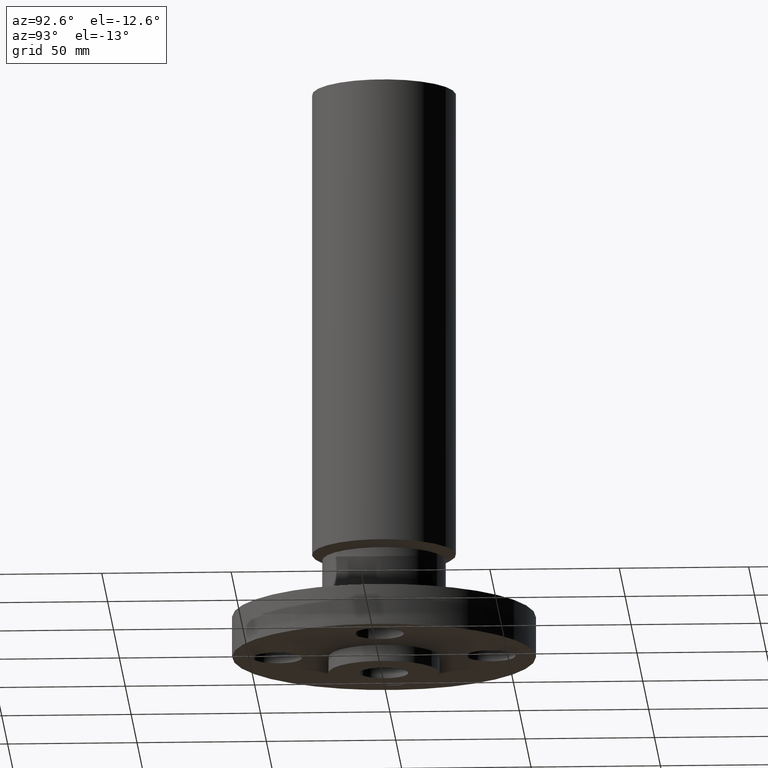
[diagram: clean part render]
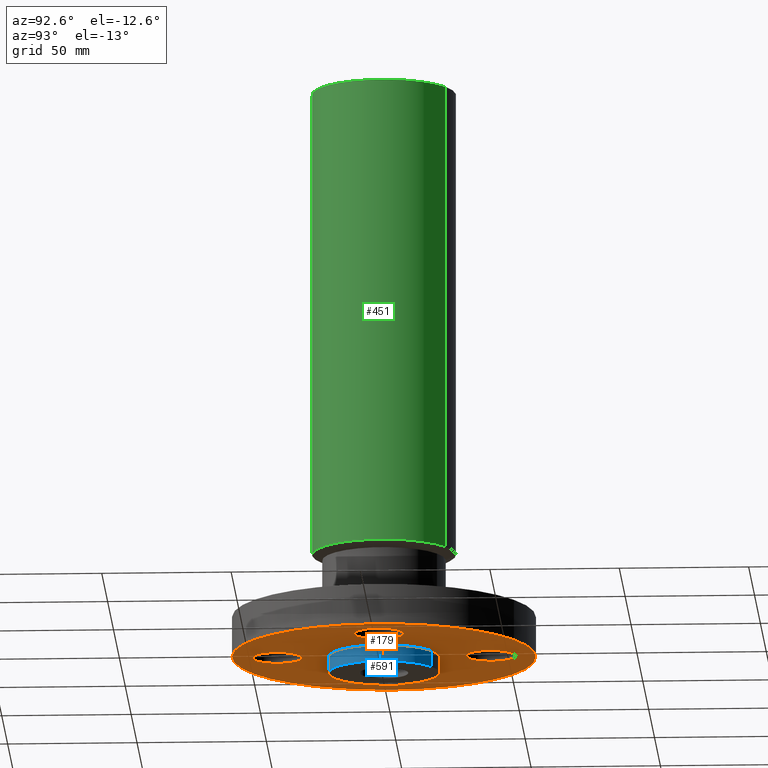
[diagram: same view with three faces highlighted in distinct colors, each labeled with its STEP entity id]
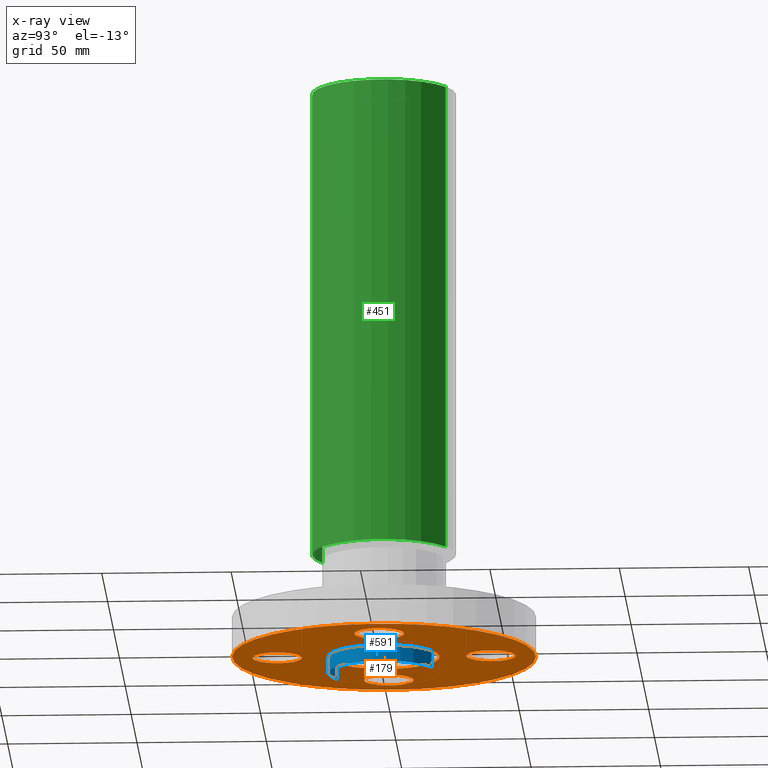
[diagram: x-ray of the same camera — body ghosted, the three highlighted faces saturated]
A machine part, auxiliary view with three faces highlighted in distinct colors.
The next image is the same camera in x-ray (body ghosted, the three faces saturated) — at least one of them is partly hidden behind the body in this view.
Their STEP definitions:

[orange] entity #179 — the highlighted planar face has unit normal (0, 0, -1).
#65=AXIS2_PLACEMENT_3D('Circle Axis2P3D',#63,#64,$) ;
#78=AXIS2_PLACEMENT_3D('Plane Axis2P3D',#75,#76,#77) ;
#82=AXIS2_PLACEMENT_3D('Circle Axis2P3D',#80,#81,$) ;
#91=AXIS2_PLACEMENT_3D('Circle Axis2P3D',#89,#90,$) ;
#100=AXIS2_PLACEMENT_3D('Circle Axis2P3D',#98,#99,$) ;
#109=AXIS2_PLACEMENT_3D('Circle Axis2P3D',#107,#108,$) ;
#118=AXIS2_PLACEMENT_3D('Circle Axis2P3D',#116,#117,$) ;
#127=AXIS2_PLACEMENT_3D('Circle Axis2P3D',#125,#126,$) ;
#136=AXIS2_PLACEMENT_3D('Circle Axis2P3D',#134,#135,$) ;
#145=AXIS2_PLACEMENT_3D('Circle Axis2P3D',#143,#144,$) ;
#154=AXIS2_PLACEMENT_3D('Circle Axis2P3D',#152,#153,$) ;
#163=AXIS2_PLACEMENT_3D('Circle Axis2P3D',#161,#162,$) ;
#172=AXIS2_PLACEMENT_3D('Circle Axis2P3D',#170,#171,$) ;
#46=CARTESIAN_POINT('Vertex',(1.2959065393,-0.179784576977,2.2401153548E-016)) ;
#60=CARTESIAN_POINT('Vertex',(1.95409346072,0.179784576977,2.2401153548E-016)) ;
#63=CARTESIAN_POINT('Axis2P3D Location',(1.62500000001,0.,0.)) ;
#75=CARTESIAN_POINT('Axis2P3D Location',(0.,0.845000000003,0.)) ;
#80=CARTESIAN_POINT('Axis2P3D Location',(0.,0.,0.)) ;
#84=CARTESIAN_POINT('Vertex',(-1.10747299418,-2.02721571797,-1.1189649382E-015)) ;
#86=CARTESIAN_POINT('Vertex',(1.10747299418,2.02721571797,-1.1189649382E-015)) ;
#89=CARTESIAN_POINT('Axis2P3D Location',(0.,0.,0.)) ;
#98=CARTESIAN_POINT('Axis2P3D Location',(1.62500000001,0.,0.)) ;
#107=CARTESIAN_POINT('Axis2P3D Location',(0.,0.,0.)) ;
#111=CARTESIAN_POINT('Vertex',(0.405114580122,0.7415572648,0.)) ;
#113=CARTESIAN_POINT('Vertex',(-0.405114580122,-0.7415572648,0.)) ;
#116=CARTESIAN_POINT('Axis2P3D Location',(0.,0.,0.)) ;
#125=CARTESIAN_POINT('Axis2P3D Location',(-2.44773580232E-016,-1.62500000001,0.)) ;
#129=CARTESIAN_POINT('Vertex',(0.179784576977,-1.95409346072,0.)) ;
#131=CARTESIAN_POINT('Vertex',(-0.179784576977,-1.2959065393,0.)) ;
#134=CARTESIAN_POINT('Axis2P3D Location',(-1.39870617276E-016,-1.62500000001,0.)) ;
#143=CARTESIAN_POINT('Axis2P3D Location',(-1.62500000001,-1.39870617276E-016,0.)) ;
#147=CARTESIAN_POINT('Vertex',(-1.95409346072,-0.179784576977,0.)) ;
#149=CARTESIAN_POINT('Vertex',(-1.2959065393,0.179784576977,0.)) ;
#152=CARTESIAN_POINT('Axis2P3D Location',(-1.62500000001,-4.19611851827E-016,0.)) ;
#161=CARTESIAN_POINT('Axis2P3D Location',(-2.09805925913E-016,1.62500000001,0.)) ;
#165=CARTESIAN_POINT('Vertex',(-0.179784576977,1.95409346072,0.)) ;
#167=CARTESIAN_POINT('Vertex',(0.179784576977,1.2959065393,0.)) ;
#170=CARTESIAN_POINT('Axis2P3D Location',(-3.49676543189E-016,1.62500000001,0.)) ;
#64=DIRECTION('Axis2P3D Direction',(0.,-0.,0.0393700787402)) ;
#76=DIRECTION('Axis2P3D Direction',(0.,0.,-0.0393700787402)) ;
#77=DIRECTION('Axis2P3D XDirection',(0.0393700787402,0.,0.)) ;
#81=DIRECTION('Axis2P3D Direction',(0.,0.,-0.0393700787402)) ;
#90=DIRECTION('Axis2P3D Direction',(0.,0.,-0.0393700787402)) ;
#99=DIRECTION('Axis2P3D Direction',(0.,0.,-0.0393700787402)) ;
#108=DIRECTION('Axis2P3D Direction',(0.,0.,-0.0393700787402)) ;
#117=DIRECTION('Axis2P3D Direction',(0.,0.,-0.0393700787402)) ;
#126=DIRECTION('Axis2P3D Direction',(0.,0.,-0.0393700787402)) ;
#135=DIRECTION('Axis2P3D Direction',(0.,0.,-0.0393700787402)) ;
#144=DIRECTION('Axis2P3D Direction',(0.,0.,-0.0393700787402)) ;
#153=DIRECTION('Axis2P3D Direction',(0.,0.,-0.0393700787402)) ;
#162=DIRECTION('Axis2P3D Direction',(0.,0.,-0.0393700787402)) ;
#171=DIRECTION('Axis2P3D Direction',(0.,0.,-0.0393700787402)) ;
#95=ORIENTED_EDGE('',*,*,#88,.T.) ;
#96=ORIENTED_EDGE('',*,*,#93,.T.) ;
#104=ORIENTED_EDGE('',*,*,#102,.F.) ;
#105=ORIENTED_EDGE('',*,*,#67,.F.) ;
#122=ORIENTED_EDGE('',*,*,#115,.F.) ;
#123=ORIENTED_EDGE('',*,*,#120,.F.) ;
#140=ORIENTED_EDGE('',*,*,#133,.F.) ;
#141=ORIENTED_EDGE('',*,*,#138,.F.) ;
#158=ORIENTED_EDGE('',*,*,#151,.F.) ;
#159=ORIENTED_EDGE('',*,*,#156,.F.) ;
#176=ORIENTED_EDGE('',*,*,#169,.F.) ;
#177=ORIENTED_EDGE('',*,*,#174,.F.) ;
#106=FACE_BOUND('',#103,.T.) ;
#124=FACE_BOUND('',#121,.T.) ;
#142=FACE_BOUND('',#139,.T.) ;
#160=FACE_BOUND('',#157,.T.) ;
#178=FACE_BOUND('',#175,.T.) ;
#179=ADVANCED_FACE('PartBody',(#97,#106,#124,#142,#160,#178),#79,.T.) ;
#66=CIRCLE('generated circle',#65,0.375000000001) ;
#83=CIRCLE('generated circle',#82,2.31000000001) ;
#92=CIRCLE('generated circle',#91,2.31000000001) ;
#101=CIRCLE('generated circle',#100,0.375000000001) ;
#110=CIRCLE('generated circle',#109,0.845000000003) ;
#119=CIRCLE('generated circle',#118,0.845000000003) ;
#128=CIRCLE('generated circle',#127,0.375000000001) ;
#137=CIRCLE('generated circle',#136,0.375000000001) ;
#146=CIRCLE('generated circle',#145,0.375000000002) ;
#155=CIRCLE('generated circle',#154,0.375000000002) ;
#164=CIRCLE('generated circle',#163,0.375000000001) ;
#173=CIRCLE('generated circle',#172,0.375000000001) ;
#67=EDGE_CURVE('',#61,#47,#66,.F.) ;
#88=EDGE_CURVE('',#85,#87,#83,.T.) ;
#93=EDGE_CURVE('',#87,#85,#92,.T.) ;
#102=EDGE_CURVE('',#47,#61,#101,.T.) ;
#115=EDGE_CURVE('',#112,#114,#110,.T.) ;
#120=EDGE_CURVE('',#114,#112,#119,.T.) ;
#133=EDGE_CURVE('',#130,#132,#128,.T.) ;
#138=EDGE_CURVE('',#132,#130,#137,.T.) ;
#151=EDGE_CURVE('',#148,#150,#146,.T.) ;
#156=EDGE_CURVE('',#150,#148,#155,.T.) ;
#169=EDGE_CURVE('',#166,#168,#164,.T.) ;
#174=EDGE_CURVE('',#168,#166,#173,.T.) ;
#94=EDGE_LOOP('',(#95,#96)) ;
#103=EDGE_LOOP('',(#104,#105)) ;
#121=EDGE_LOOP('',(#122,#123)) ;
#139=EDGE_LOOP('',(#140,#141)) ;
#157=EDGE_LOOP('',(#158,#159)) ;
#175=EDGE_LOOP('',(#176,#177)) ;
#97=FACE_OUTER_BOUND('',#94,.T.) ;
#79=PLANE('',#78) ;
#47=VERTEX_POINT('',#46) ;
#61=VERTEX_POINT('',#60) ;
#85=VERTEX_POINT('',#84) ;
#87=VERTEX_POINT('',#86) ;
#112=VERTEX_POINT('',#111) ;
#114=VERTEX_POINT('',#113) ;
#130=VERTEX_POINT('',#129) ;
#132=VERTEX_POINT('',#131) ;
#148=VERTEX_POINT('',#147) ;
#150=VERTEX_POINT('',#149) ;
#166=VERTEX_POINT('',#165) ;
#168=VERTEX_POINT('',#167) ;

[blue] entity #591 — the highlighted cylindrical surface (partial cylindrical patch) has radius 21.463 mm, axis along (0, 0, -1).
#109=AXIS2_PLACEMENT_3D('Circle Axis2P3D',#107,#108,$) ;
#551=AXIS2_PLACEMENT_3D('Circle Axis2P3D',#549,#550,$) ;
#566=AXIS2_PLACEMENT_3D('Cylinder Axis2P3D',#563,#564,#565) ;
#107=CARTESIAN_POINT('Axis2P3D Location',(0.,0.,0.)) ;
#111=CARTESIAN_POINT('Vertex',(0.405114580122,0.7415572648,0.)) ;
#113=CARTESIAN_POINT('Vertex',(-0.405114580122,-0.7415572648,0.)) ;
#544=CARTESIAN_POINT('Vertex',(-0.405114580122,-0.7415572648,-0.250000000001)) ;
#546=CARTESIAN_POINT('Vertex',(0.405114580122,0.7415572648,-0.250000000001)) ;
#549=CARTESIAN_POINT('Axis2P3D Location',(0.,0.,-0.250000000001)) ;
#563=CARTESIAN_POINT('Axis2P3D Location',(0.,0.,4.25000000002)) ;
#568=CARTESIAN_POINT('Line Origine',(-0.405114580122,-0.7415572648,-0.125000000001)) ;
#573=CARTESIAN_POINT('Line Origine',(0.405114580122,0.7415572648,-0.125000000001)) ;
#108=DIRECTION('Axis2P3D Direction',(0.,0.,-0.0393700787402)) ;
#550=DIRECTION('Axis2P3D Direction',(0.,0.,-0.0393700787402)) ;
#564=DIRECTION('Axis2P3D Direction',(0.,0.,-0.0393700787402)) ;
#565=DIRECTION('Axis2P3D XDirection',(0.0188750212049,0.0345504945626,0.)) ;
#569=DIRECTION('Vector Direction',(0.,0.,-0.0393700787402)) ;
#574=DIRECTION('Vector Direction',(0.,0.,-0.0393700787402)) ;
#570=VECTOR('Line Direction',#569,0.0393700787402) ;
#575=VECTOR('Line Direction',#574,0.0393700787402) ;
#586=ORIENTED_EDGE('',*,*,#553,.F.) ;
#587=ORIENTED_EDGE('',*,*,#577,.T.) ;
#588=ORIENTED_EDGE('',*,*,#115,.T.) ;
#589=ORIENTED_EDGE('',*,*,#572,.F.) ;
#591=ADVANCED_FACE('PartBody',(#590),#567,.T.) ;
#110=CIRCLE('generated circle',#109,0.845000000003) ;
#552=CIRCLE('generated circle',#551,0.845000000003) ;
#567=CYLINDRICAL_SURFACE('generated cylinder',#566,0.845000000003) ;
#115=EDGE_CURVE('',#112,#114,#110,.T.) ;
#553=EDGE_CURVE('',#547,#545,#552,.T.) ;
#572=EDGE_CURVE('',#545,#114,#571,.F.) ;
#577=EDGE_CURVE('',#547,#112,#576,.F.) ;
#585=EDGE_LOOP('',(#586,#587,#588,#589)) ;
#590=FACE_OUTER_BOUND('',#585,.T.) ;
#571=LINE('Line',#568,#570) ;
#576=LINE('Line',#573,#575) ;
#112=VERTEX_POINT('',#111) ;
#114=VERTEX_POINT('',#113) ;
#545=VERTEX_POINT('',#544) ;
#547=VERTEX_POINT('',#546) ;

[green] entity #451 — the highlighted cylindrical surface (partial cylindrical patch) has radius 27.813 mm, axis along (0, 0, -1).
#392=AXIS2_PLACEMENT_3D('Circle Axis2P3D',#390,#391,$) ;
#424=AXIS2_PLACEMENT_3D('Cylinder Axis2P3D',#421,#422,#423) ;
#435=AXIS2_PLACEMENT_3D('Circle Axis2P3D',#433,#434,$) ;
#387=CARTESIAN_POINT('Vertex',(0.524970964774,0.960952905274,1.58948929173)) ;
#390=CARTESIAN_POINT('Axis2P3D Location',(0.,0.,1.58948929173)) ;
#394=CARTESIAN_POINT('Vertex',(-0.524970964774,-0.960952905274,1.58948929173)) ;
#421=CARTESIAN_POINT('Axis2P3D Location',(0.,0.,4.25000000002)) ;
#426=CARTESIAN_POINT('Line Origine',(0.524970964774,0.960952905274,5.16974464588)) ;
#430=CARTESIAN_POINT('Vertex',(0.524970964774,0.960952905274,8.75000000004)) ;
#433=CARTESIAN_POINT('Axis2P3D Location',(0.,0.,8.75000000003)) ;
#437=CARTESIAN_POINT('Vertex',(-0.524970964774,-0.960952905274,8.75000000004)) ;
#440=CARTESIAN_POINT('Line Origine',(-0.524970964774,-0.960952905274,5.16974464588)) ;
#391=DIRECTION('Axis2P3D Direction',(-0.,0.,0.0393700787402)) ;
#422=DIRECTION('Axis2P3D Direction',(0.,0.,-0.0393700787402)) ;
#423=DIRECTION('Axis2P3D XDirection',(-0.0188750212049,-0.0345504945626,0.)) ;
#427=DIRECTION('Vector Direction',(0.,0.,-0.0393700787402)) ;
#434=DIRECTION('Axis2P3D Direction',(0.,0.,-0.0393700787402)) ;
#441=DIRECTION('Vector Direction',(0.,0.,-0.0393700787402)) ;
#428=VECTOR('Line Direction',#427,0.0393700787402) ;
#442=VECTOR('Line Direction',#441,0.0393700787402) ;
#446=ORIENTED_EDGE('',*,*,#396,.F.) ;
#447=ORIENTED_EDGE('',*,*,#432,.T.) ;
#448=ORIENTED_EDGE('',*,*,#439,.T.) ;
#449=ORIENTED_EDGE('',*,*,#444,.F.) ;
#451=ADVANCED_FACE('PartBody',(#450),#425,.T.) ;
#393=CIRCLE('generated circle',#392,1.095) ;
#436=CIRCLE('generated circle',#435,1.095) ;
#425=CYLINDRICAL_SURFACE('generated cylinder',#424,1.095) ;
#396=EDGE_CURVE('',#388,#395,#393,.F.) ;
#432=EDGE_CURVE('',#388,#431,#429,.F.) ;
#439=EDGE_CURVE('',#431,#438,#436,.T.) ;
#444=EDGE_CURVE('',#395,#438,#443,.F.) ;
#445=EDGE_LOOP('',(#446,#447,#448,#449)) ;
#450=FACE_OUTER_BOUND('',#445,.T.) ;
#429=LINE('Line',#426,#428) ;
#443=LINE('Line',#440,#442) ;
#388=VERTEX_POINT('',#387) ;
#395=VERTEX_POINT('',#394) ;
#431=VERTEX_POINT('',#430) ;
#438=VERTEX_POINT('',#437) ;